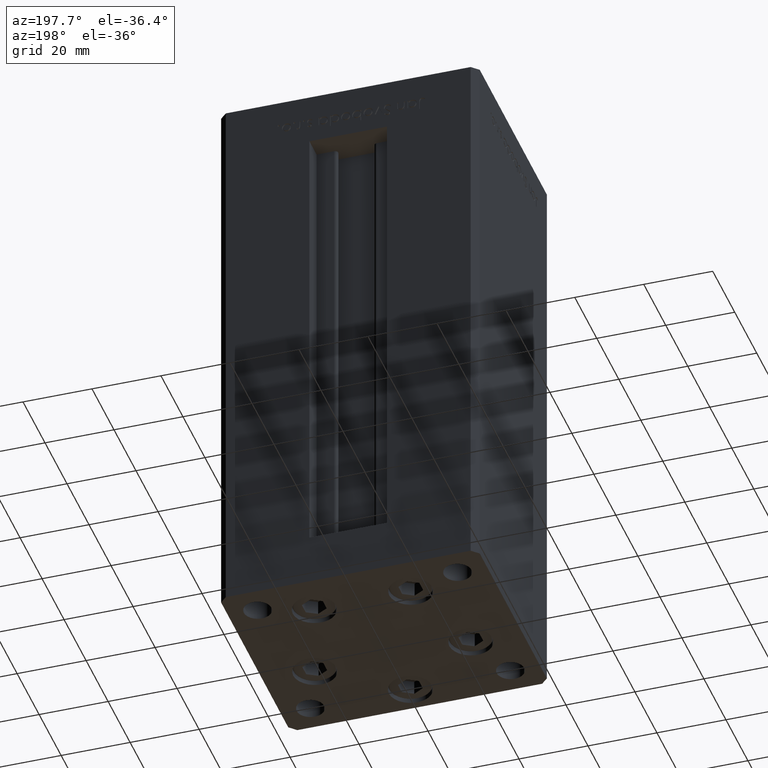
[diagram: clean part render]
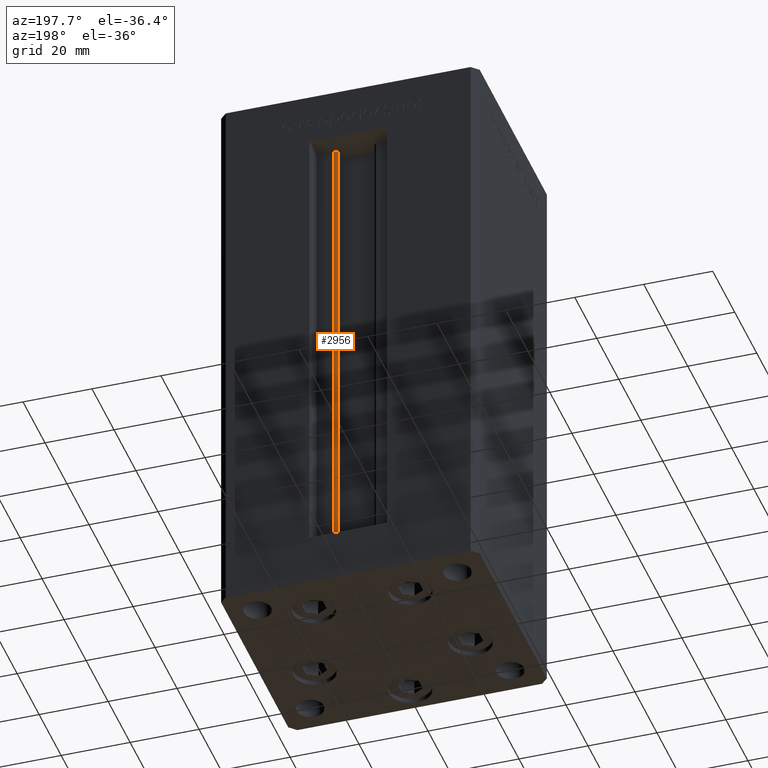
[diagram: same view with one face highlighted and labeled with its STEP entity id]
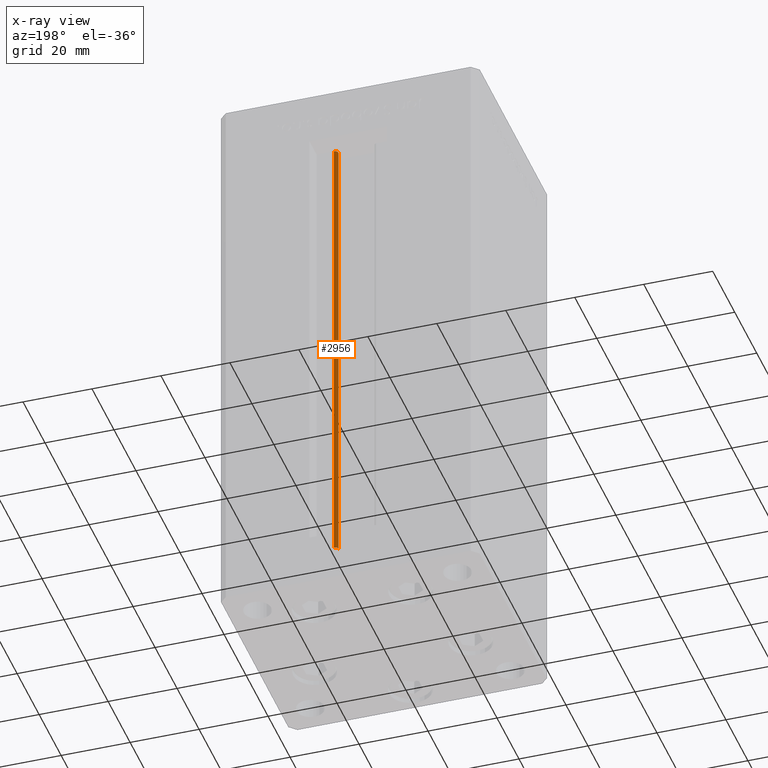
[diagram: x-ray of the same camera — body ghosted, the highlighted face saturated]
A machine part, auxiliary view. The second image highlights one B-rep face of the part: STEP entity #2956.
The next image is the same camera in x-ray: the body ghosted, the highlighted face saturated — about 0% of this face is hidden behind the body in this view.
In plain terms, the highlighted cylindrical surface (edge-blend (fillet) strip) has radius 0.9333 mm, axis along (0, 0, 1).
Its self-contained STEP definition (entity closure, byte-faithful):
#863 = VERTEX_POINT ( 'NONE', #29181 ) ;
#2956 = ADVANCED_FACE ( 'NONE', ( #18075 ), #50015, .T. ) ;
#3722 = EDGE_CURVE ( 'NONE', #10389, #39593, #22639, .T. ) ;
#4616 = ORIENTED_EDGE ( 'NONE', *, *, #41483, .T. ) ;
#5491 = DIRECTION ( 'NONE',  ( -0.000000000000000000, -0.000000000000000000, 1.000000000000000000 ) ) ;
#5773 = EDGE_CURVE ( 'NONE', #39246, #863, #50627, .T. ) ;
#8385 = CARTESIAN_POINT ( 'NONE',  ( 5.375042956467947164, 24.59999999999899245, 0.000000000000000000 ) ) ;
#8657 = CARTESIAN_POINT ( 'NONE',  ( 5.375042956467947164, 24.59999999999899245, 0.000000000000000000 ) ) ;
#8675 = DIRECTION ( 'NONE',  ( 1.000000000000000000, 0.000000000000000000, 0.000000000000000000 ) ) ;
#8905 = DIRECTION ( 'NONE',  ( 1.000000000000000000, 0.000000000000000000, 0.000000000000000000 ) ) ;
#10389 = VERTEX_POINT ( 'NONE', #18974 ) ;
#12861 = CARTESIAN_POINT ( 'NONE',  ( 6.183333333334001480, 25.06666666666599141, 0.000000000000000000 ) ) ;
#13130 = VECTOR ( 'NONE', #50527, 1000.000000000000000 ) ;
#14112 = DIRECTION ( 'NONE',  ( -0.000000000000000000, -0.000000000000000000, 1.000000000000000000 ) ) ;
#18062 = CARTESIAN_POINT ( 'NONE',  ( 6.183333333334001480, 25.99999999999999289, 0.000000000000000000 ) ) ;
#18075 = FACE_OUTER_BOUND ( 'NONE', #39083, .T. ) ;
#18974 = CARTESIAN_POINT ( 'NONE',  ( 5.375042956467948052, 24.59999999999899245, 136.0000000000000000 ) ) ;
#19796 = DIRECTION ( 'NONE',  ( 0.000000000000000000, 0.000000000000000000, -1.000000000000000000 ) ) ;
#22639 = CIRCLE ( 'NONE', #33590, 0.9333333333340008142 ) ;
#28713 = CARTESIAN_POINT ( 'NONE',  ( 6.183333333334001480, 25.06666666666599141, 136.0000000000000000 ) ) ;
#28948 = DIRECTION ( 'NONE',  ( -0.000000000000000000, -0.000000000000000000, -1.000000000000000000 ) ) ;
#29181 = CARTESIAN_POINT ( 'NONE',  ( 6.183333333334001480, 25.99999999999999289, 0.000000000000000000 ) ) ;
#33590 = AXIS2_PLACEMENT_3D ( 'NONE', #28713, #19796, #8675 ) ;
#33662 = ORIENTED_EDGE ( 'NONE', *, *, #3722, .T. ) ;
#34426 = AXIS2_PLACEMENT_3D ( 'NONE', #38657, #14112, #44829 ) ;
#35120 = ORIENTED_EDGE ( 'NONE', *, *, #40679, .F. ) ;
#38657 = CARTESIAN_POINT ( 'NONE',  ( 6.183333333334001480, 25.06666666666599141, 0.000000000000000000 ) ) ;
#39083 = EDGE_LOOP ( 'NONE', ( #35120, #50136, #4616, #33662 ) ) ;
#39246 = VERTEX_POINT ( 'NONE', #8385 ) ;
#39593 = VERTEX_POINT ( 'NONE', #45014 ) ;
#40679 = EDGE_CURVE ( 'NONE', #863, #39593, #46308, .T. ) ;
#41132 = LINE ( 'NONE', #8657, #43473 ) ;
#41483 = EDGE_CURVE ( 'NONE', #39246, #10389, #41132, .T. ) ;
#43473 = VECTOR ( 'NONE', #5491, 1000.000000000000000 ) ;
#44829 = DIRECTION ( 'NONE',  ( 1.000000000000000000, 0.000000000000000000, 0.000000000000000000 ) ) ;
#45014 = CARTESIAN_POINT ( 'NONE',  ( 6.183333333334001480, 25.99999999999999289, 136.0000000000000000 ) ) ;
#46308 = LINE ( 'NONE', #18062, #13130 ) ;
#49797 = AXIS2_PLACEMENT_3D ( 'NONE', #12861, #28948, #8905 ) ;
#50015 = CYLINDRICAL_SURFACE ( 'NONE', #34426, 0.9333333333340008142 ) ;
#50136 = ORIENTED_EDGE ( 'NONE', *, *, #5773, .F. ) ;
#50527 = DIRECTION ( 'NONE',  ( -0.000000000000000000, -0.000000000000000000, 1.000000000000000000 ) ) ;
#50627 = CIRCLE ( 'NONE', #49797, 0.9333333333340008142 ) ;